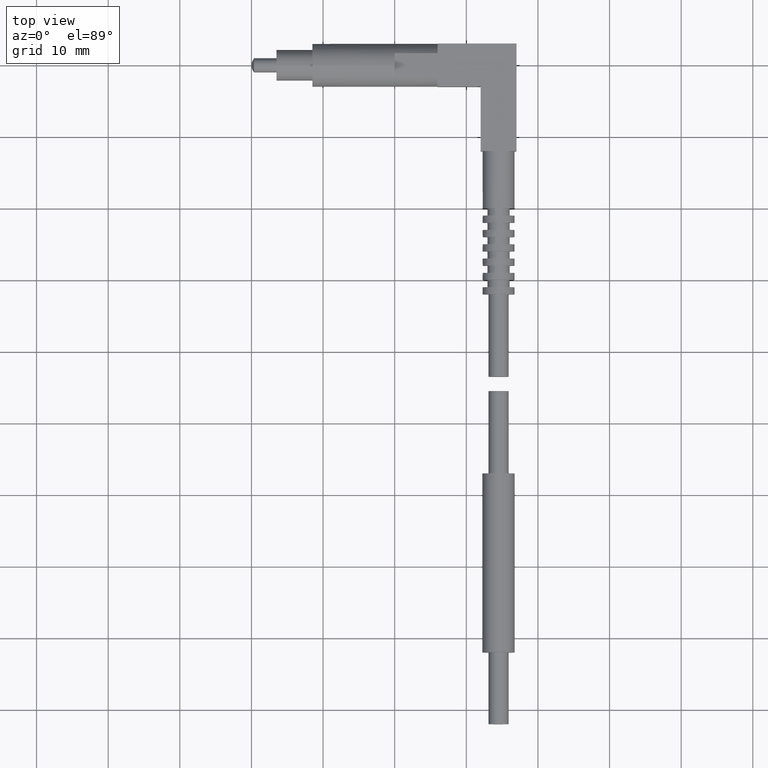
[diagram: clean part render]
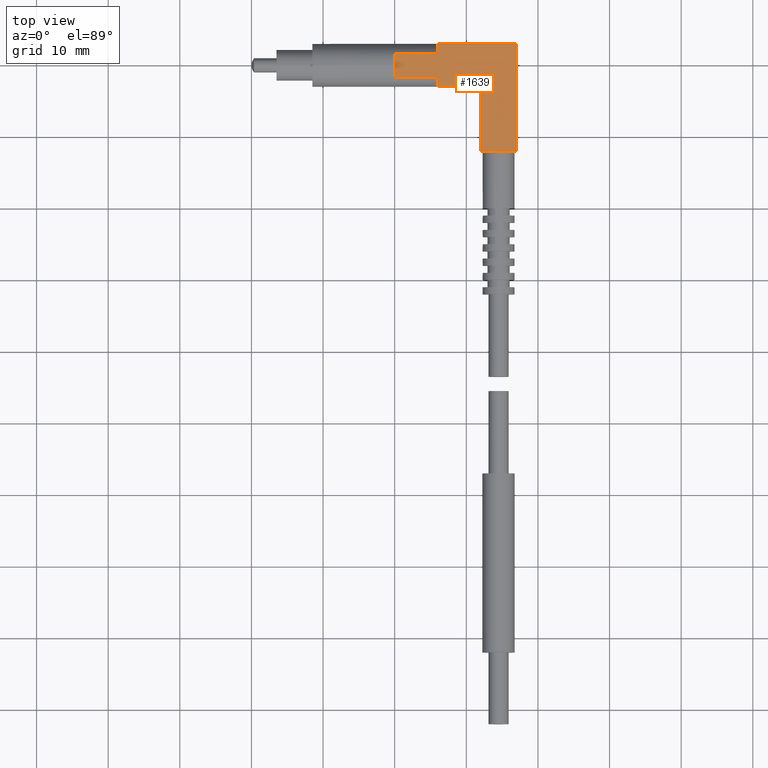
[diagram: same view with one face highlighted and labeled with its STEP entity id]
A machine part, top view. The second image highlights one B-rep face of the part: STEP entity #1639.
In plain terms, the highlighted planar face has unit normal (0, 0, 1).
Its self-contained STEP definition (entity closure, byte-faithful):
#9 = EDGE_CURVE ( 'NONE', #1000, #182, #1147, .T. ) ;
#12 = LINE ( 'NONE', #716, #1896 ) ;
#14 = DIRECTION ( 'NONE',  ( 0.0000000000000000000, 0.0000000000000000000, 1.000000000000000000 ) ) ;
#48 = DIRECTION ( 'NONE',  ( -1.000000000000000000, 0.0000000000000000000, 0.0000000000000000000 ) ) ;
#57 = DIRECTION ( 'NONE',  ( 0.0000000000000000000, -1.000000000000000000, 0.0000000000000000000 ) ) ;
#87 = VERTEX_POINT ( 'NONE', #1508 ) ;
#182 = VERTEX_POINT ( 'NONE', #1662 ) ;
#186 = LINE ( 'NONE', #967, #1162 ) ;
#240 = LINE ( 'NONE', #1382, #910 ) ;
#249 = VERTEX_POINT ( 'NONE', #533 ) ;
#290 = DIRECTION ( 'NONE',  ( 0.0000000000000000000, 1.000000000000000000, 0.0000000000000000000 ) ) ;
#299 = EDGE_LOOP ( 'NONE', ( #1065, #649, #1384, #621, #1787, #371, #1330, #1383, #459, #1399 ) ) ;
#358 = LINE ( 'NONE', #1656, #634 ) ;
#371 = ORIENTED_EDGE ( 'NONE', *, *, #1871, .F. ) ;
#389 = VECTOR ( 'NONE', #290, 39.37007874015748143 ) ;
#406 = DIRECTION ( 'NONE',  ( 0.0000000000000000000, -1.000000000000000000, 0.0000000000000000000 ) ) ;
#424 = EDGE_CURVE ( 'NONE', #1305, #249, #572, .T. ) ;
#426 = EDGE_CURVE ( 'NONE', #1829, #500, #1170, .T. ) ;
#434 = CARTESIAN_POINT ( 'NONE',  ( 1.259842519685039353, -0.4724409448818898127, 0.09842519685039370636 ) ) ;
#459 = ORIENTED_EDGE ( 'NONE', *, *, #1704, .T. ) ;
#465 = PLANE ( 'NONE',  #1309 ) ;
#471 = VECTOR ( 'NONE', #48, 39.37007874015748143 ) ;
#500 = VERTEX_POINT ( 'NONE', #864 ) ;
#511 = VERTEX_POINT ( 'NONE', #434 ) ;
#524 = DIRECTION ( 'NONE',  ( 0.0000000000000000000, -1.000000000000000000, 0.0000000000000000000 ) ) ;
#533 = CARTESIAN_POINT ( 'NONE',  ( 1.456692913385826849, 0.1181102362204724532, 0.09842519685039370636 ) ) ;
#560 = CARTESIAN_POINT ( 'NONE',  ( 1.023622047244094446, 0.1181102362204724532, 0.09842519685039370636 ) ) ;
#572 = LINE ( 'NONE', #1738, #389 ) ;
#586 = CARTESIAN_POINT ( 'NONE',  ( 0.7874015748031496509, 0.06528788957392520076, 0.09842519685039370636 ) ) ;
#590 = CARTESIAN_POINT ( 'NONE',  ( 1.023622047244094446, -0.06528788957392520076, 0.09842519685039370636 ) ) ;
#596 = VECTOR ( 'NONE', #1363, 39.37007874015748143 ) ;
#621 = ORIENTED_EDGE ( 'NONE', *, *, #1453, .F. ) ;
#622 = EDGE_CURVE ( 'NONE', #511, #1305, #1076, .T. ) ;
#634 = VECTOR ( 'NONE', #524, 39.37007874015748143 ) ;
#649 = ORIENTED_EDGE ( 'NONE', *, *, #1154, .T. ) ;
#690 = VECTOR ( 'NONE', #1341, 39.37007874015748143 ) ;
#716 = CARTESIAN_POINT ( 'NONE',  ( 0.0000000000000000000, 0.06528788957392520076, 0.09842519685039370636 ) ) ;
#730 = VECTOR ( 'NONE', #406, 39.37007874015748143 ) ;
#838 = DIRECTION ( 'NONE',  ( -1.000000000000000000, 0.0000000000000000000, 0.0000000000000000000 ) ) ;
#864 = CARTESIAN_POINT ( 'NONE',  ( 1.259842519685039353, -0.1181102362204724532, 0.09842519685039370636 ) ) ;
#895 = CARTESIAN_POINT ( 'NONE',  ( 0.7874015748031496509, -0.1181102362204724532, 0.09842519685039370636 ) ) ;
#910 = VECTOR ( 'NONE', #57, 39.37007874015748143 ) ;
#933 = CARTESIAN_POINT ( 'NONE',  ( 1.456692913385826849, 0.1181102362204724532, 0.09842519685039370636 ) ) ;
#950 = CARTESIAN_POINT ( 'NONE',  ( 1.456692913385826849, -0.4724409448818898127, 0.09842519685039370636 ) ) ;
#967 = CARTESIAN_POINT ( 'NONE',  ( 0.0000000000000000000, -0.06528788957392520076, 0.09842519685039370636 ) ) ;
#1000 = VERTEX_POINT ( 'NONE', #586 ) ;
#1016 = DIRECTION ( 'NONE',  ( 1.000000000000000000, -0.0000000000000000000, -0.0000000000000000000 ) ) ;
#1044 = DIRECTION ( 'NONE',  ( 1.000000000000000000, 0.0000000000000000000, 0.0000000000000000000 ) ) ;
#1065 = ORIENTED_EDGE ( 'NONE', *, *, #424, .T. ) ;
#1076 = LINE ( 'NONE', #1622, #690 ) ;
#1147 = LINE ( 'NONE', #1346, #596 ) ;
#1154 = EDGE_CURVE ( 'NONE', #249, #87, #1897, .T. ) ;
#1162 = VECTOR ( 'NONE', #838, 39.37007874015748143 ) ;
#1170 = LINE ( 'NONE', #1732, #1901 ) ;
#1211 = EDGE_CURVE ( 'NONE', #1405, #1829, #358, .T. ) ;
#1305 = VERTEX_POINT ( 'NONE', #950 ) ;
#1309 = AXIS2_PLACEMENT_3D ( 'NONE', #895, #14, #1044 ) ;
#1313 = DIRECTION ( 'NONE',  ( 1.000000000000000000, 0.0000000000000000000, 0.0000000000000000000 ) ) ;
#1318 = EDGE_CURVE ( 'NONE', #87, #1816, #1771, .T. ) ;
#1330 = ORIENTED_EDGE ( 'NONE', *, *, #1211, .T. ) ;
#1341 = DIRECTION ( 'NONE',  ( 1.000000000000000000, 0.0000000000000000000, 0.0000000000000000000 ) ) ;
#1346 = CARTESIAN_POINT ( 'NONE',  ( 0.7874015748031496509, 0.1181102362204724532, 0.09842519685039370636 ) ) ;
#1363 = DIRECTION ( 'NONE',  ( 0.0000000000000000000, -1.000000000000000000, 0.0000000000000000000 ) ) ;
#1382 = CARTESIAN_POINT ( 'NONE',  ( 1.259842519685039353, -0.1181102362204724532, 0.09842519685039370636 ) ) ;
#1383 = ORIENTED_EDGE ( 'NONE', *, *, #426, .T. ) ;
#1384 = ORIENTED_EDGE ( 'NONE', *, *, #1318, .T. ) ;
#1399 = ORIENTED_EDGE ( 'NONE', *, *, #622, .T. ) ;
#1405 = VERTEX_POINT ( 'NONE', #590 ) ;
#1407 = CARTESIAN_POINT ( 'NONE',  ( 1.023622047244094446, -0.1181102362204724532, 0.09842519685039370636 ) ) ;
#1453 = EDGE_CURVE ( 'NONE', #1000, #1816, #12, .T. ) ;
#1508 = CARTESIAN_POINT ( 'NONE',  ( 1.023622047244094446, 0.1181102362204724532, 0.09842519685039370636 ) ) ;
#1622 = CARTESIAN_POINT ( 'NONE',  ( 1.456692913385826849, -0.4724409448818898127, 0.09842519685039370636 ) ) ;
#1639 = ADVANCED_FACE ( 'NONE', ( #1848 ), #465, .T. ) ;
#1656 = CARTESIAN_POINT ( 'NONE',  ( 1.023622047244094446, 0.1181102362204724532, 0.09842519685039370636 ) ) ;
#1662 = CARTESIAN_POINT ( 'NONE',  ( 0.7874015748031496509, -0.06528788957392520076, 0.09842519685039370636 ) ) ;
#1698 = CARTESIAN_POINT ( 'NONE',  ( 1.023622047244094446, 0.06528788957392520076, 0.09842519685039370636 ) ) ;
#1704 = EDGE_CURVE ( 'NONE', #500, #511, #240, .T. ) ;
#1732 = CARTESIAN_POINT ( 'NONE',  ( 1.259842519685039353, -0.1181102362204724532, 0.09842519685039370636 ) ) ;
#1738 = CARTESIAN_POINT ( 'NONE',  ( 1.456692913385826849, 0.1181102362204724532, 0.09842519685039370636 ) ) ;
#1771 = LINE ( 'NONE', #560, #730 ) ;
#1787 = ORIENTED_EDGE ( 'NONE', *, *, #9, .T. ) ;
#1816 = VERTEX_POINT ( 'NONE', #1698 ) ;
#1829 = VERTEX_POINT ( 'NONE', #1407 ) ;
#1848 = FACE_OUTER_BOUND ( 'NONE', #299, .T. ) ;
#1871 = EDGE_CURVE ( 'NONE', #1405, #182, #186, .T. ) ;
#1896 = VECTOR ( 'NONE', #1016, 39.37007874015748143 ) ;
#1897 = LINE ( 'NONE', #933, #471 ) ;
#1901 = VECTOR ( 'NONE', #1313, 39.37007874015748143 ) ;